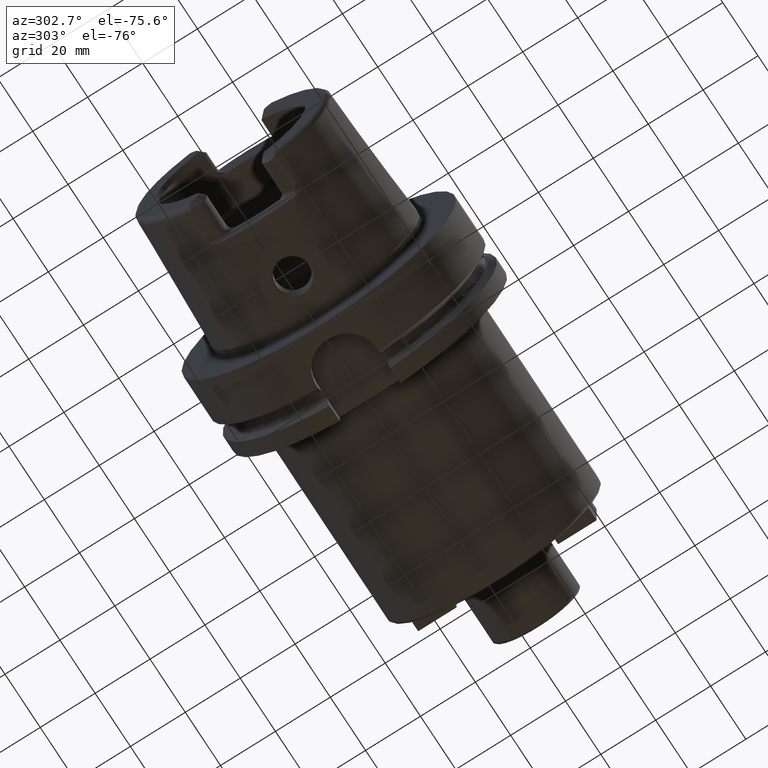
[diagram: clean part render]
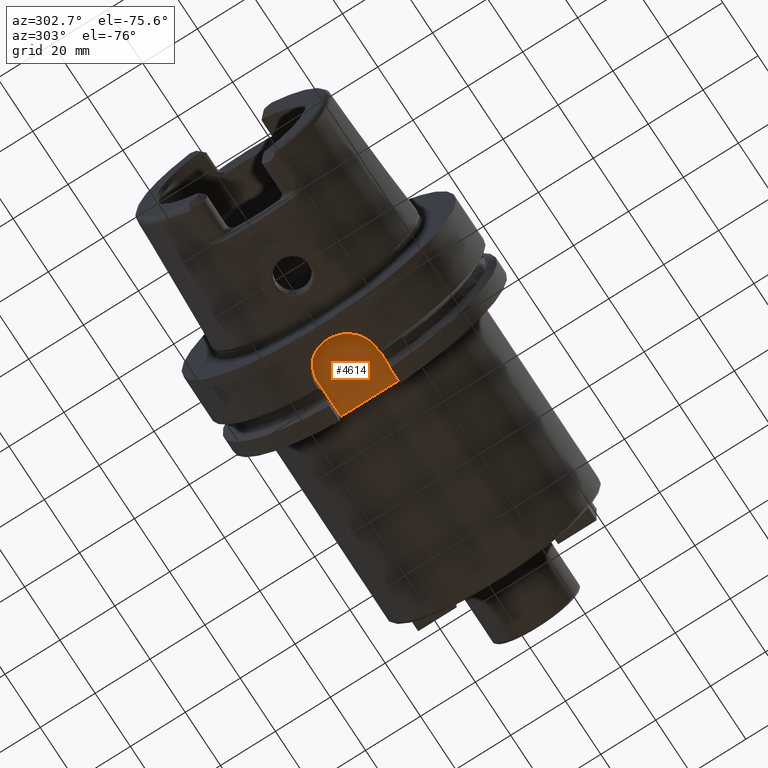
[diagram: same view with one face highlighted and labeled with its STEP entity id]
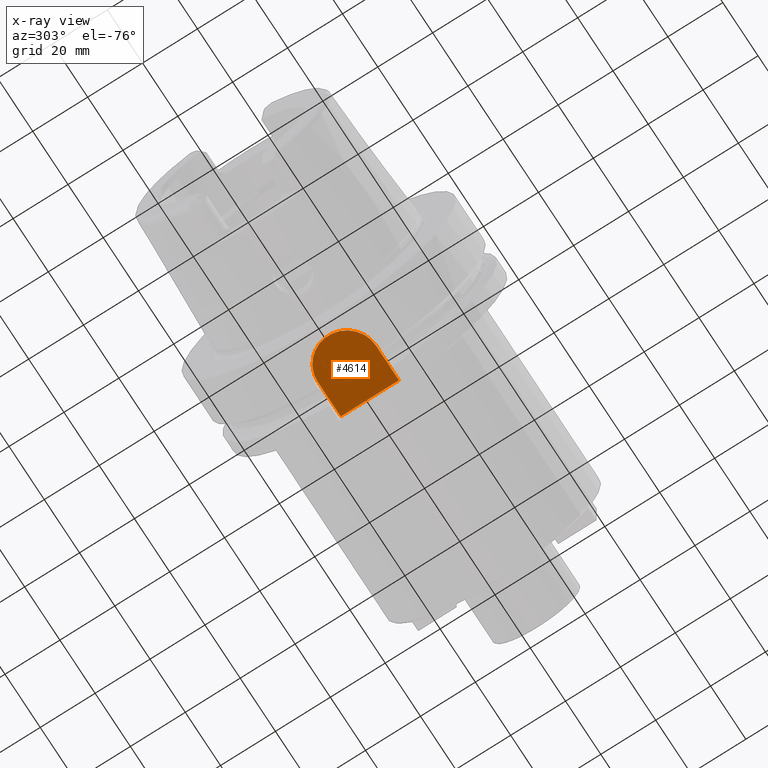
[diagram: x-ray of the same camera — body ghosted, the highlighted face saturated]
A machine part, auxiliary view. The second image highlights one B-rep face of the part: STEP entity #4614.
The next image is the same camera in x-ray: the body ghosted, the highlighted face saturated — about 0% of this face is hidden behind the body in this view.
In plain terms, the highlighted planar face has unit normal (0, 0, -1).
Its self-contained STEP definition (entity closure, byte-faithful):
#1083=DIRECTION('',(0.E0,-1.E0,0.E0));
#1084=VECTOR('',#1083,2.12E1);
#1085=CARTESIAN_POINT('',(2.9E1,1.06E1,-4.4E1));
#1086=LINE('',#1085,#1084);
#1267=DIRECTION('',(1.E0,3.248915666844E-10,-3.259565609311E-10));
#1268=VECTOR('',#1267,1.299999999828E1);
#1269=CARTESIAN_POINT('',(1.600000000172E1,-1.060000000422E1,
-4.399999999576E1));
#1270=LINE('',#1269,#1268);
#1271=DIRECTION('',(-1.E0,3.244620982657E-10,3.263850728660E-10));
#1272=VECTOR('',#1271,1.299999999796E1);
#1273=CARTESIAN_POINT('',(2.9E1,1.06E1,-4.4E1));
#1274=LINE('',#1273,#1272);
#1275=CARTESIAN_POINT('',(1.6E1,0.E0,-4.399999965713E1));
#1276=DIRECTION('',(0.E0,0.E0,1.E0));
#1277=DIRECTION('',(0.E0,1.E0,0.E0));
#1278=AXIS2_PLACEMENT_3D('',#1275,#1276,#1277);
#3088=CARTESIAN_POINT('',(2.9E1,1.06E1,-4.4E1));
#3090=VERTEX_POINT('',#3088);
#3093=CARTESIAN_POINT('',(2.9E1,-1.06E1,-4.4E1));
#3095=VERTEX_POINT('',#3093);
#3168=CARTESIAN_POINT('',(1.600000000172E1,-1.060000000422E1,
-4.399999999576E1));
#3169=VERTEX_POINT('',#3168);
#3174=CARTESIAN_POINT('',(1.600000000204E1,1.060000000422E1,-4.399999999576E1));
#3175=VERTEX_POINT('',#3174);
#4603=CARTESIAN_POINT('',(0.E0,0.E0,-4.4E1));
#4604=DIRECTION('',(0.E0,0.E0,-1.E0));
#4605=DIRECTION('',(1.E0,0.E0,0.E0));
#4606=AXIS2_PLACEMENT_3D('',#4603,#4604,#4605);
#4607=PLANE('',#4606);
#4608=ORIENTED_EDGE('',*,*,#4595,.T.);
#4609=ORIENTED_EDGE('',*,*,#4416,.F.);
#4610=ORIENTED_EDGE('',*,*,#4569,.T.);
#4611=ORIENTED_EDGE('',*,*,#4581,.T.);
#4612=EDGE_LOOP('',(#4608,#4609,#4610,#4611));
#4613=FACE_OUTER_BOUND('',#4612,.F.);
#4614=ADVANCED_FACE('',(#4613),#4607,.T.);
#1279=CIRCLE('',#1278,1.059999968251E1);
#4416=EDGE_CURVE('',#3090,#3095,#1086,.T.);
#4569=EDGE_CURVE('',#3090,#3175,#1274,.T.);
#4581=EDGE_CURVE('',#3175,#3169,#1279,.T.);
#4595=EDGE_CURVE('',#3169,#3095,#1270,.T.);